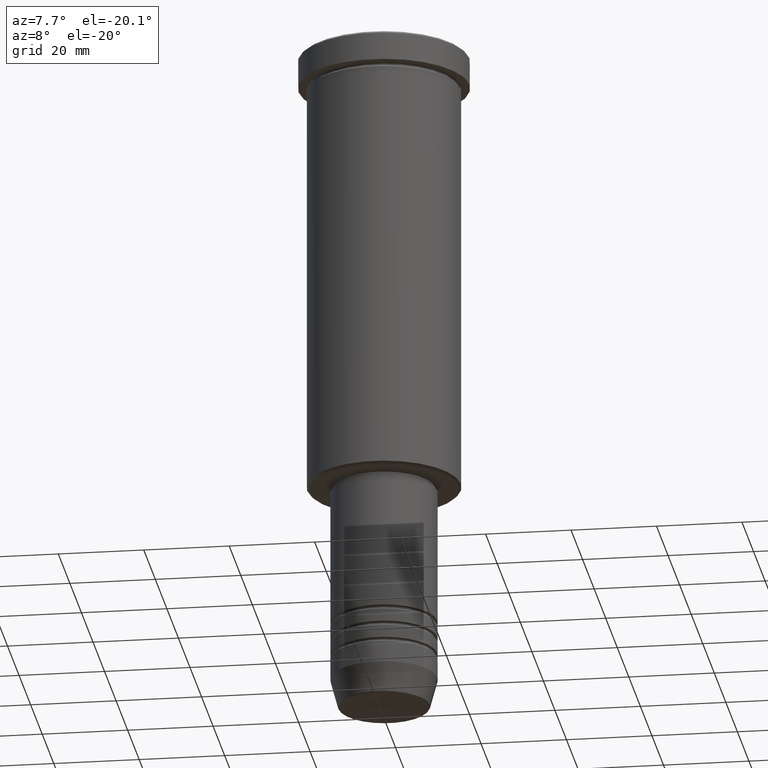
[diagram: clean part render]
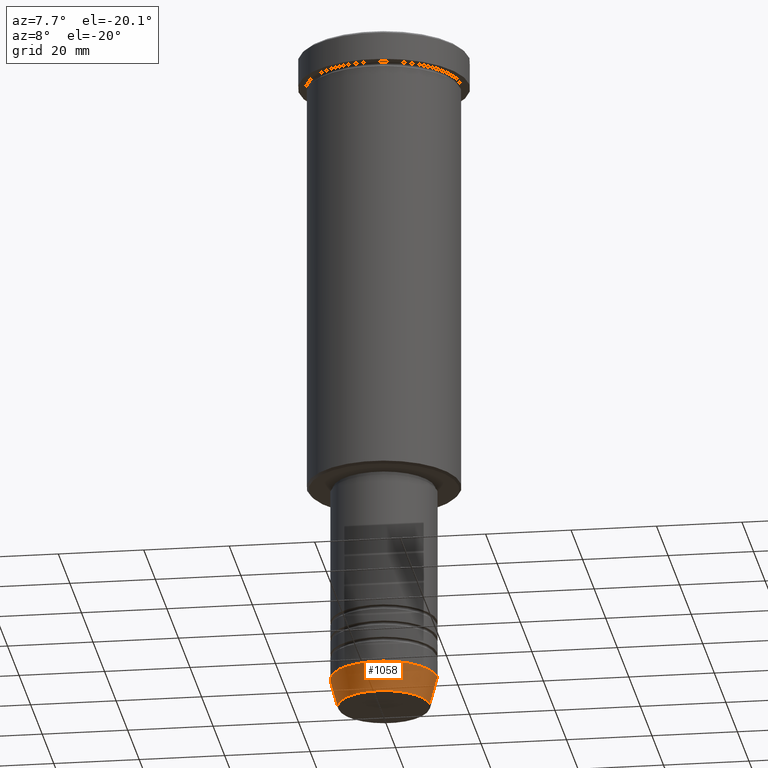
[diagram: same view with one face highlighted and labeled with its STEP entity id]
A machine part, auxiliary view. The second image highlights one B-rep face of the part: STEP entity #1058.
In plain terms, the highlighted conical surface has half-angle 15 deg.
Its self-contained STEP definition (entity closure, byte-faithful):
#87 = ORIENTED_EDGE ( 'NONE', *, *, #292, .F. ) ;
#136 = ORIENTED_EDGE ( 'NONE', *, *, #504, .T. ) ;
#149 = CARTESIAN_POINT ( 'NONE',  ( 0.000000000000000000, 0.000000000000000000, -153.0000000000000000 ) ) ;
#150 = DIRECTION ( 'NONE',  ( 0.2588190451025203509, 0.000000000000000000, 0.9659258262890684232 ) ) ;
#219 = DIRECTION ( 'NONE',  ( 1.000000000000000000, 0.000000000000000000, 0.000000000000000000 ) ) ;
#225 = DIRECTION ( 'NONE',  ( -0.2588190451025203509, 3.169619151431760011E-17, 0.9659258262890684232 ) ) ;
#257 = CARTESIAN_POINT ( 'NONE',  ( 0.000000000000000000, 0.000000000000000000, -159.6294095225512706 ) ) ;
#262 = ORIENTED_EDGE ( 'NONE', *, *, #701, .T. ) ;
#282 = CIRCLE ( 'NONE', #871, 12.50000000000000000 ) ;
#285 = CARTESIAN_POINT ( 'NONE',  ( -12.50000000000000000, 1.530808498934191521E-15, -153.0000000000000000 ) ) ;
#292 = EDGE_CURVE ( 'NONE', #647, #1110, #282, .T. ) ;
#330 = DIRECTION ( 'NONE',  ( -0.000000000000000000, -0.000000000000000000, 1.000000000000000000 ) ) ;
#339 = VECTOR ( 'NONE', #150, 1000.000000000000000 ) ;
#408 = CARTESIAN_POINT ( 'NONE',  ( -12.50000000000000000, 1.530808498934191521E-15, -153.0000000000000000 ) ) ;
#411 = AXIS2_PLACEMENT_3D ( 'NONE', #257, #1176, #728 ) ;
#499 = LINE ( 'NONE', #408, #952 ) ;
#504 = EDGE_CURVE ( 'NONE', #936, #1110, #1053, .T. ) ;
#647 = VERTEX_POINT ( 'NONE', #285 ) ;
#693 = CARTESIAN_POINT ( 'NONE',  ( 0.000000000000000000, 0.000000000000000000, -153.0000000000000000 ) ) ;
#701 = EDGE_CURVE ( 'NONE', #899, #936, #930, .T. ) ;
#728 = DIRECTION ( 'NONE',  ( 1.000000000000000000, 0.000000000000000000, 0.000000000000000000 ) ) ;
#784 = CARTESIAN_POINT ( 'NONE',  ( 10.72365507213719660, 0.000000000000000000, -159.6294095225512706 ) ) ;
#799 = AXIS2_PLACEMENT_3D ( 'NONE', #149, #330, #219 ) ;
#801 = DIRECTION ( 'NONE',  ( -0.000000000000000000, -0.000000000000000000, 1.000000000000000000 ) ) ;
#864 = EDGE_LOOP ( 'NONE', ( #902, #262, #136, #87 ) ) ;
#868 = CARTESIAN_POINT ( 'NONE',  ( -10.72365507213719660, 1.422038742429750713E-15, -159.6294095225512706 ) ) ;
#871 = AXIS2_PLACEMENT_3D ( 'NONE', #693, #801, #1174 ) ;
#888 = CARTESIAN_POINT ( 'NONE',  ( 12.50000000000000000, 0.000000000000000000, -153.0000000000000000 ) ) ;
#899 = VERTEX_POINT ( 'NONE', #868 ) ;
#902 = ORIENTED_EDGE ( 'NONE', *, *, #966, .F. ) ;
#930 = CIRCLE ( 'NONE', #411, 10.72365507213719660 ) ;
#936 = VERTEX_POINT ( 'NONE', #784 ) ;
#939 = CARTESIAN_POINT ( 'NONE',  ( 12.50000000000000000, 0.000000000000000000, -153.0000000000000000 ) ) ;
#952 = VECTOR ( 'NONE', #225, 1000.000000000000000 ) ;
#966 = EDGE_CURVE ( 'NONE', #899, #647, #499, .T. ) ;
#1028 = CONICAL_SURFACE ( 'NONE', #799, 12.50000000000000000, 0.2617993877991490193 ) ;
#1031 = FACE_OUTER_BOUND ( 'NONE', #864, .T. ) ;
#1053 = LINE ( 'NONE', #888, #339 ) ;
#1058 = ADVANCED_FACE ( 'NONE', ( #1031 ), #1028, .T. ) ;
#1110 = VERTEX_POINT ( 'NONE', #939 ) ;
#1174 = DIRECTION ( 'NONE',  ( 1.000000000000000000, 0.000000000000000000, 0.000000000000000000 ) ) ;
#1176 = DIRECTION ( 'NONE',  ( -0.000000000000000000, -0.000000000000000000, 1.000000000000000000 ) ) ;